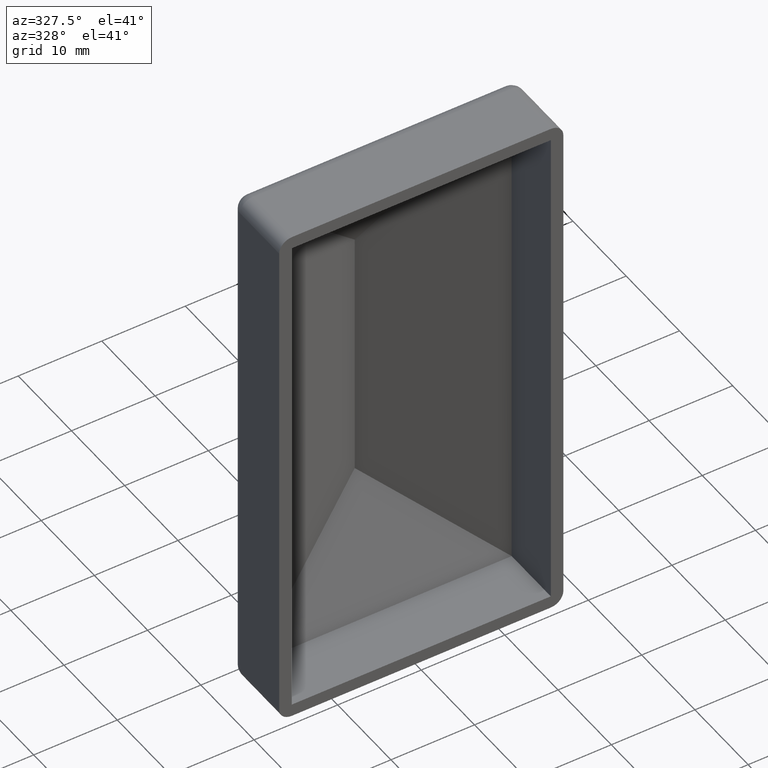
[diagram: clean part render]
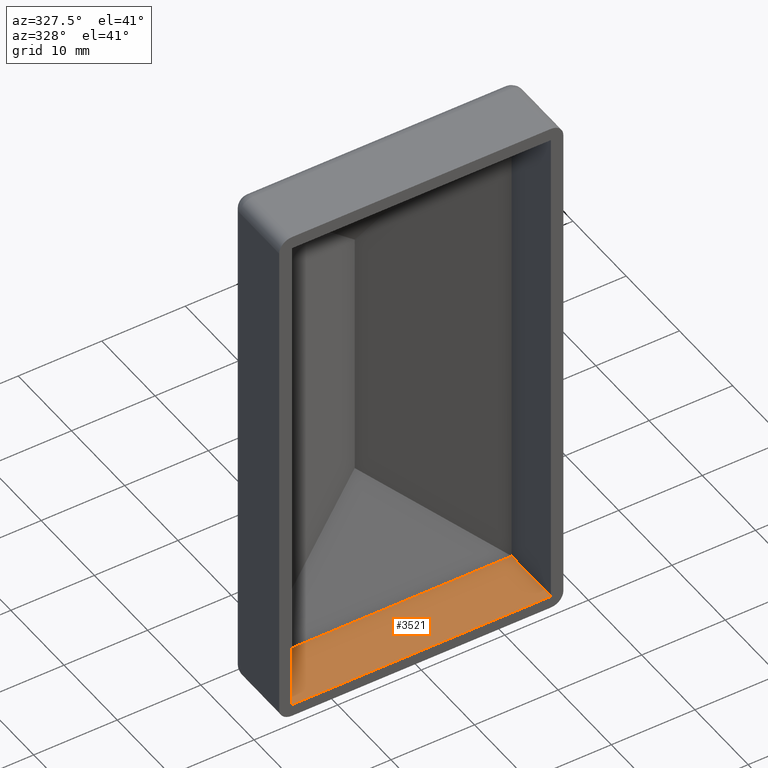
[diagram: same view with one face highlighted and labeled with its STEP entity id]
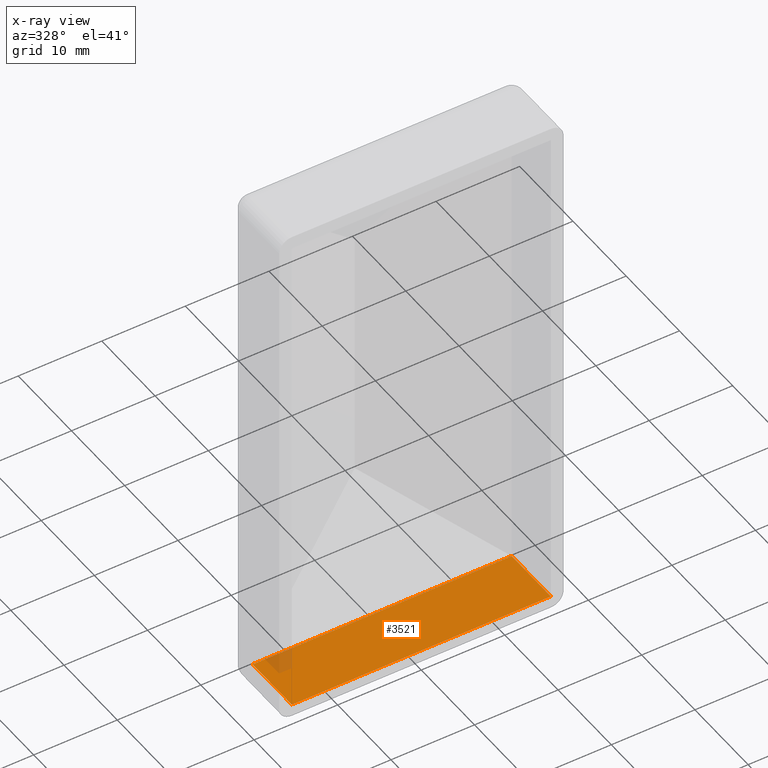
[diagram: x-ray of the same camera — body ghosted, the highlighted face saturated]
A machine part, auxiliary view. The second image highlights one B-rep face of the part: STEP entity #3521.
The next image is the same camera in x-ray: the body ghosted, the highlighted face saturated — about 3% of this face is hidden behind the body in this view.
In plain terms, the highlighted planar face has unit normal (0, 0, 1).
Its self-contained STEP definition (entity closure, byte-faithful):
#133 = CARTESIAN_POINT ( 'NONE',  ( -15.50000000000000533, 0.000000000000000000, -30.49999999999999289 ) ) ;
#751 = LINE ( 'NONE', #2347, #2261 ) ;
#1701 = ORIENTED_EDGE ( 'NONE', *, *, #8928, .T. ) ;
#2002 = LINE ( 'NONE', #7475, #13302 ) ;
#2076 = VERTEX_POINT ( 'NONE', #6349 ) ;
#2261 = VECTOR ( 'NONE', #10057, 1000.000000000000000 ) ;
#2347 = CARTESIAN_POINT ( 'NONE',  ( -15.50000000000000533, 30.00000000000000000, -30.49999999999999289 ) ) ;
#2443 = VERTEX_POINT ( 'NONE', #12467 ) ;
#2451 = VERTEX_POINT ( 'NONE', #133 ) ;
#2560 = EDGE_LOOP ( 'NONE', ( #12743, #1701, #4073, #10867 ) ) ;
#2719 = CARTESIAN_POINT ( 'NONE',  ( -17.00000000000000355, 30.00000000000000000, -30.49999999999999289 ) ) ;
#2883 = EDGE_CURVE ( 'NONE', #2443, #2076, #2002, .T. ) ;
#3152 = CARTESIAN_POINT ( 'NONE',  ( -17.00000000000000355, 7.350000000000005862, -30.49999999999999289 ) ) ;
#3161 = CARTESIAN_POINT ( 'NONE',  ( -17.00000000000000355, 0.000000000000000000, -30.49999999999999289 ) ) ;
#3521 = ADVANCED_FACE ( 'NONE', ( #5619 ), #10285, .T. ) ;
#4073 = ORIENTED_EDGE ( 'NONE', *, *, #8048, .F. ) ;
#5619 = FACE_OUTER_BOUND ( 'NONE', #2560, .T. ) ;
#6045 = DIRECTION ( 'NONE',  ( 1.000000000000000000, 0.000000000000000000, -0.000000000000000000 ) ) ;
#6349 = CARTESIAN_POINT ( 'NONE',  ( 15.49999999999999112, 0.000000000000000000, -30.49999999999999289 ) ) ;
#6538 = DIRECTION ( 'NONE',  ( 1.000000000000000000, 0.000000000000000000, -0.000000000000000000 ) ) ;
#7475 = CARTESIAN_POINT ( 'NONE',  ( 15.49999999999998934, 30.00000000000000000, -30.49999999999999289 ) ) ;
#7534 = VERTEX_POINT ( 'NONE', #11802 ) ;
#8048 = EDGE_CURVE ( 'NONE', #2076, #2451, #11891, .T. ) ;
#8075 = DIRECTION ( 'NONE',  ( 0.000000000000000000, 0.000000000000000000, 1.000000000000000000 ) ) ;
#8371 = EDGE_CURVE ( 'NONE', #7534, #2443, #13587, .T. ) ;
#8928 = EDGE_CURVE ( 'NONE', #7534, #2451, #751, .T. ) ;
#8962 = VECTOR ( 'NONE', #13136, 1000.000000000000000 ) ;
#9127 = VECTOR ( 'NONE', #6538, 1000.000000000000000 ) ;
#9752 = DIRECTION ( 'NONE',  ( 0.000000000000000000, -1.000000000000000000, 0.000000000000000000 ) ) ;
#10057 = DIRECTION ( 'NONE',  ( 0.000000000000000000, -1.000000000000000000, 0.000000000000000000 ) ) ;
#10285 = PLANE ( 'NONE',  #12946 ) ;
#10867 = ORIENTED_EDGE ( 'NONE', *, *, #2883, .F. ) ;
#11802 = CARTESIAN_POINT ( 'NONE',  ( -15.50000000000000355, 7.350000000000004974, -30.49999999999999289 ) ) ;
#11891 = LINE ( 'NONE', #3161, #8962 ) ;
#12467 = CARTESIAN_POINT ( 'NONE',  ( 15.49999999999999822, 7.350000000000009415, -30.49999999999998579 ) ) ;
#12743 = ORIENTED_EDGE ( 'NONE', *, *, #8371, .F. ) ;
#12946 = AXIS2_PLACEMENT_3D ( 'NONE', #2719, #8075, #6045 ) ;
#13136 = DIRECTION ( 'NONE',  ( -1.000000000000000000, 0.000000000000000000, 0.000000000000000000 ) ) ;
#13302 = VECTOR ( 'NONE', #9752, 1000.000000000000000 ) ;
#13587 = LINE ( 'NONE', #3152, #9127 ) ;